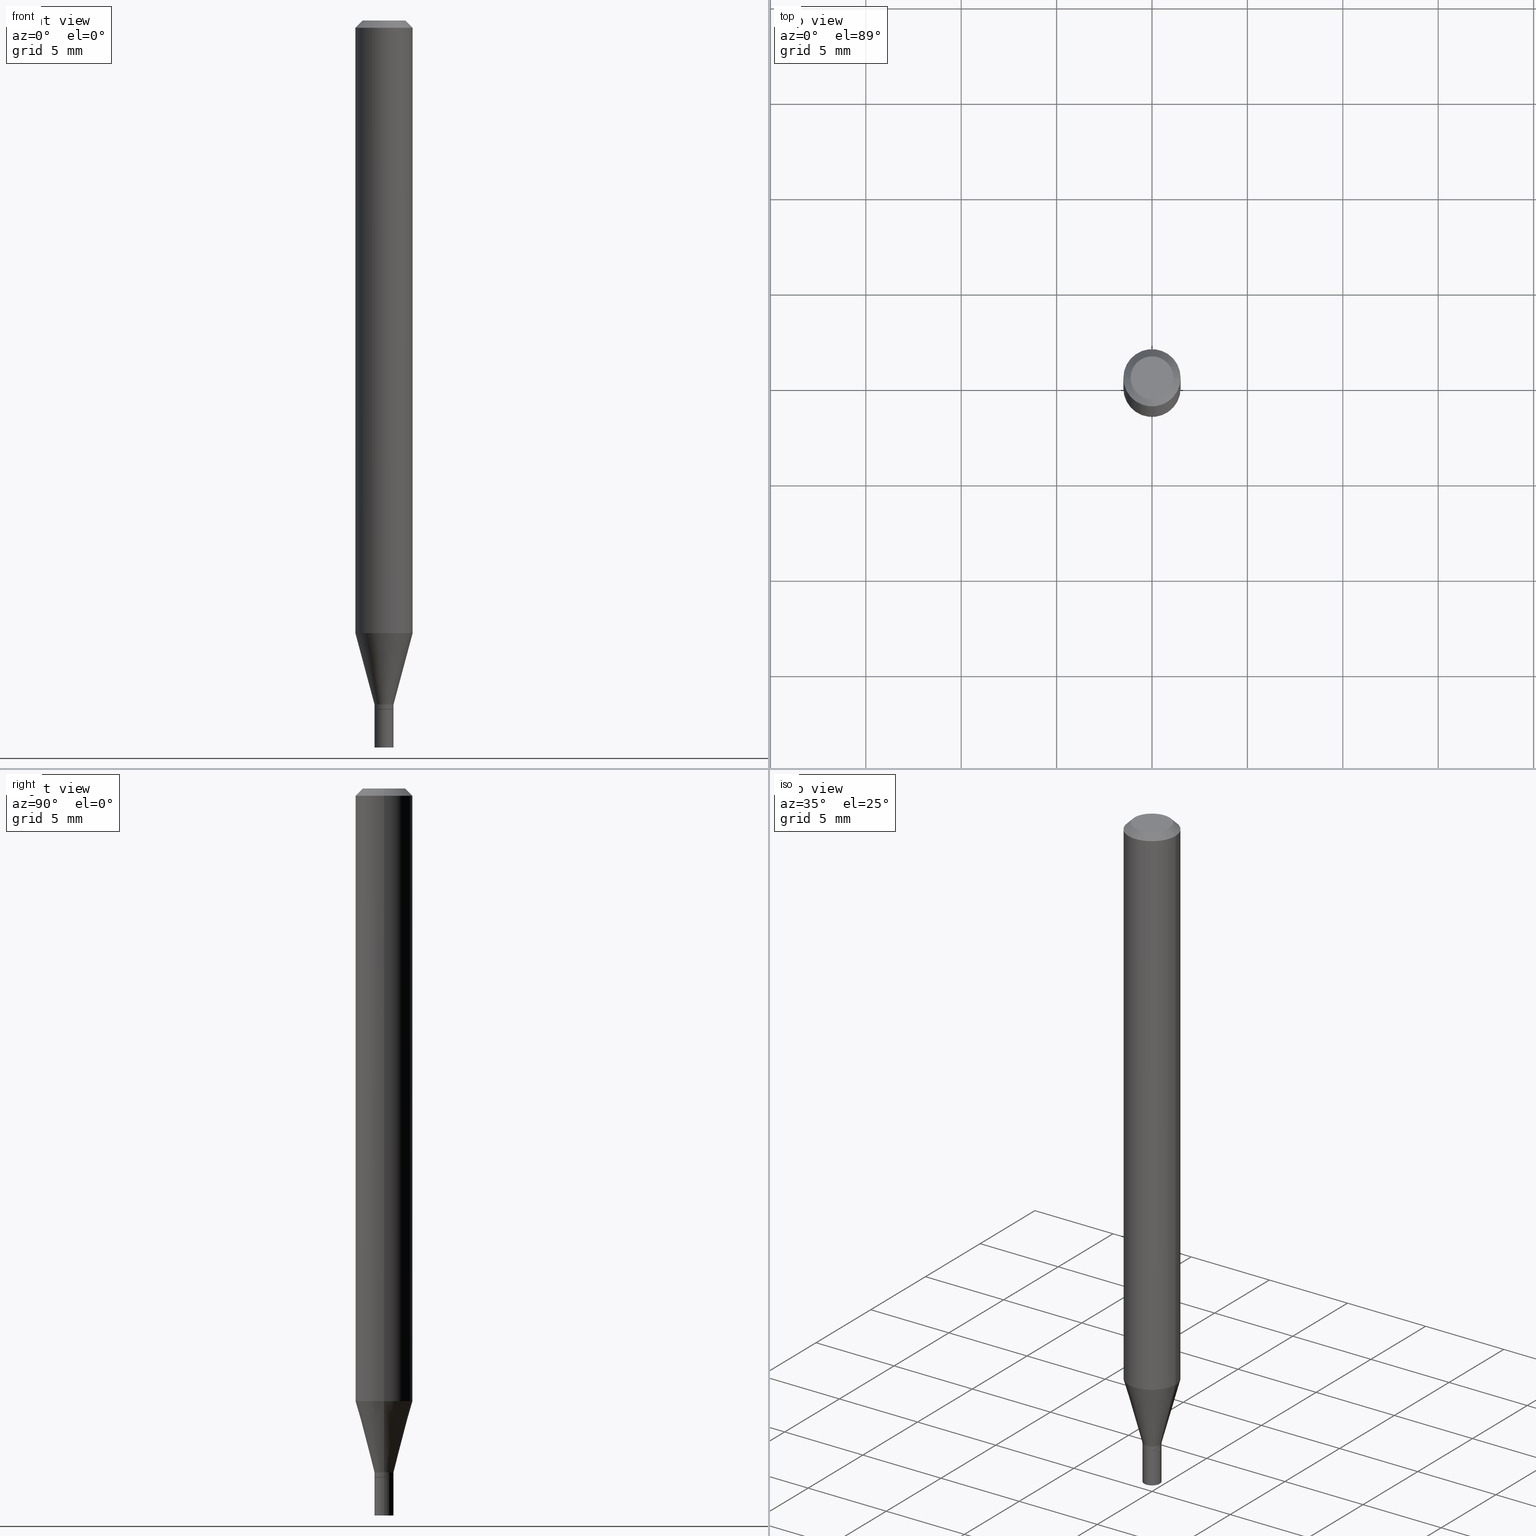
[diagram: canonical four-view strip — front | top / right | iso, engineering-drawing reading convention]
A machine part, canonical four-view strip (front | top / right | iso — engineering-drawing reading convention). The complete STEP part file that produces these views, byte-faithful:
ISO-10303-21;
HEADER;
FILE_DESCRIPTION (( 'STEP AP203' ),
    '1' );
FILE_NAME ('41605.STEP',
    '2024-03-12T19:14:59',
    ( '' ),
    ( '' ),
    'SwSTEP 2.0',
    'SolidWorks 2023',
    '' );
FILE_SCHEMA (( 'CONFIG_CONTROL_DESIGN' ));
ENDSEC;

DATA;
#1 = LOCAL_TIME ( 15, 14, 59.00000000000000000, #165 ) ;
#2 = DIRECTION ( 'NONE',  ( 1.000000000000000000, -6.982962677686265922E-15, 4.819687581474398999E-29 ) ) ;
#3 = CIRCLE ( 'NONE', #91, 0.01969999999999999876 ) ;
#4 = DIRECTION ( 'NONE',  ( 1.000000000000000000, -6.982962677686266711E-15, 4.876176775795935793E-29 ) ) ;
#5 = DIRECTION ( 'NONE',  ( 1.000000000000000000, -6.982962677686278543E-15, 0.000000000000000000 ) ) ;
#6 = CYLINDRICAL_SURFACE ( 'NONE', #210, 0.01969999999999990856 ) ;
#7 =( CONVERSION_BASED_UNIT ( 'INCH', #335 ) LENGTH_UNIT ( ) NAMED_UNIT ( #416 ) );
#8 = ORIENTED_EDGE ( 'NONE', *, *, #56, .F. ) ;
#9 = DIRECTION ( 'NONE',  ( -2.445468806185136877E-29, 3.491481338843145188E-15, 1.000000000000000000 ) ) ;
#10 = DIRECTION ( 'NONE',  ( -2.445468806185136597E-29, 3.491481338843145583E-15, 1.000000000000000000 ) ) ;
#11 = DATE_AND_TIME ( #27, #411 ) ;
#12 = EDGE_CURVE ( 'NONE', #26, #277, #35, .T. ) ;
#13 = ORIENTED_EDGE ( 'NONE', *, *, #101, .T. ) ;
#14 = DIRECTION ( 'NONE',  ( -2.445468806185136877E-29, 3.491481338843145188E-15, 1.000000000000000000 ) ) ;
#15 = CARTESIAN_POINT ( 'NONE',  ( 0.000000000000000000, 0.000000000000000000, 0.000000000000000000 ) ) ;
#16 = ADVANCED_FACE ( 'NONE', ( #285 ), #425, .F. ) ;
#17 = DATE_TIME_ROLE ( 'creation_date' ) ;
#18 = ORIENTED_EDGE ( 'NONE', *, *, #408, .F. ) ;
#19 = DIRECTION ( 'NONE',  ( 0.2588190451025211836, 1.565188264969622559E-15, 0.9659258262890679791 ) ) ;
#20 = EDGE_LOOP ( 'NONE', ( #52, #329 ) ) ;
#21 = EDGE_CURVE ( 'NONE', #215, #443, #141, .T. ) ;
#22 = AXIS2_PLACEMENT_3D ( 'NONE', #54, #354, #95 ) ;
#23 = CC_DESIGN_APPROVAL ( #290, ( #103 ) ) ;
#24 = PLANE ( 'NONE',  #364 ) ;
#25 = PERSON_AND_ORGANIZATION ( #250, #269 ) ;
#26 = VERTEX_POINT ( 'NONE', #252 ) ;
#27 = CALENDAR_DATE ( 2024, 12, 3 ) ;
#28 = AXIS2_PLACEMENT_3D ( 'NONE', #395, #428, #70 ) ;
#29 = DATE_AND_TIME ( #318, #1 ) ;
#30 = FACE_OUTER_BOUND ( 'NONE', #119, .T. ) ;
#31 = CC_DESIGN_PERSON_AND_ORGANIZATION_ASSIGNMENT ( #278, #434, ( #259 ) ) ;
#32 = LOCAL_TIME ( 15, 14, 59.00000000000000000, #275 ) ;
#33 = MANIFOLD_SOLID_BREP ( 'Body-Move/Copy2[1]', #170 ) ;
#34 = ORIENTED_EDGE ( 'NONE', *, *, #267, .T. ) ;
#35 = LINE ( 'NONE', #84, #282 ) ;
#36 = VERTEX_POINT ( 'NONE', #184 ) ;
#37 = CARTESIAN_POINT ( 'NONE',  ( 0.01969999999999999876, -1.375643647504194363E-16, 9.606068248317991466E-31 ) ) ;
#38 = AXIS2_PLACEMENT_3D ( 'NONE', #353, #310, #92 ) ;
#39 = CC_DESIGN_APPROVAL ( #130, ( #230 ) ) ;
#40 = CARTESIAN_POINT ( 'NONE',  ( -0.01969999999999990856, 1.399769189447390869E-16, -9.690302127802118711E-31 ) ) ;
#41 = CLOSED_SHELL ( 'NONE', ( #405, #420, #331, #137, #46, #315, #265, #157, #180, #16, #422, #304 ) ) ;
#42 = ORIENTED_EDGE ( 'NONE', *, *, #213, .T. ) ;
#43 = DIRECTION ( 'NONE',  ( 1.000000000000000000, -6.982962677686266711E-15, 0.000000000000000000 ) ) ;
#44 = CARTESIAN_POINT ( 'NONE',  ( -0.05905000000000001914, -3.994159004369345529E-15, -1.264143800722164368 ) ) ;
#45 = DIRECTION ( 'NONE',  ( -2.445468806185136877E-29, 3.491481338843145188E-15, 1.000000000000000000 ) ) ;
#46 = ADVANCED_FACE ( 'NONE', ( #214 ), #199, .T. ) ;
#47 = DIRECTION ( 'NONE',  ( -2.445468806185136597E-29, 3.491481338843145583E-15, 1.000000000000000000 ) ) ;
#48 = CC_DESIGN_PERSON_AND_ORGANIZATION_ASSIGNMENT ( #66, #366, ( #230 ) ) ;
#49 = ORIENTED_EDGE ( 'NONE', *, *, #338, .T. ) ;
#50 = CARTESIAN_POINT ( 'NONE',  ( 3.091424231198372341E-29, -4.413734489835684233E-15, -1.264143800722164368 ) ) ;
#51 = AXIS2_PLACEMENT_3D ( 'NONE', #446, #113, #326 ) ;
#52 = ORIENTED_EDGE ( 'NONE', *, *, #21, .T. ) ;
#53 = EDGE_CURVE ( 'NONE', #346, #215, #370, .T. ) ;
#54 = CARTESIAN_POINT ( 'NONE',  ( 3.075995059520799729E-16, 0.04404999999999999888, 2.287766971589501637E-17 ) ) ;
#55 = CYLINDRICAL_SURFACE ( 'NONE', #319, 0.05905000000000001914 ) ;
#56 = EDGE_CURVE ( 'NONE', #337, #211, #409, .T. ) ;
#57 = VERTEX_POINT ( 'NONE', #115 ) ;
#58 = LINE ( 'NONE', #198, #325 ) ;
#59 = AXIS2_PLACEMENT_3D ( 'NONE', #271, #200, #61 ) ;
#60 = APPROVAL_PERSON_ORGANIZATION ( #131, #367, #201 ) ;
#61 = DIRECTION ( 'NONE',  ( 1.000000000000000000, -6.982962677686265922E-15, 4.876176775795935232E-29 ) ) ;
#62 = CONICAL_SURFACE ( 'NONE', #38, 0.05905000000000001914, 0.7853981633974372878 ) ;
#63 = CARTESIAN_POINT ( 'NONE',  ( -0.01969999999999999876, 1.399769189447397278E-16, -9.690302127802162501E-31 ) ) ;
#64 = SECURITY_CLASSIFICATION_LEVEL ( 'unclassified' ) ;
#65 = EDGE_LOOP ( 'NONE', ( #34, #266 ) ) ;
#66 = PERSON_AND_ORGANIZATION ( #250, #269 ) ;
#67 = ORIENTED_EDGE ( 'NONE', *, *, #267, .F. ) ;
#68 = MECHANICAL_CONTEXT ( 'NONE', #386, 'mechanical' ) ;
#69 = PERSON_AND_ORGANIZATION ( #250, #269 ) ;
#70 = DIRECTION ( 'NONE',  ( 1.000000000000000000, -6.982962677686266711E-15, 0.000000000000000000 ) ) ;
#71 = ORIENTED_EDGE ( 'NONE', *, *, #340, .T. ) ;
#72 = VERTEX_POINT ( 'NONE', #85 ) ;
#73 = ADVANCED_BREP_SHAPE_REPRESENTATION ( '41605', ( #33, #189, #246 ), #160 ) ;
#74 = APPROVAL_PERSON_ORGANIZATION ( #134, #130, #320 ) ;
#75 = CARTESIAN_POINT ( 'NONE',  ( 3.450556485527227151E-29, -4.926480169107677131E-15, -1.410999999999999810 ) ) ;
#76 = CARTESIAN_POINT ( 'NONE',  ( -0.01969999999999999876, -4.959855298636500621E-15, -1.421300000000000008 ) ) ;
#77 = CARTESIAN_POINT ( 'NONE',  ( -0.01969999999999989468, -4.390331127266142070E-15, -1.410999999999999810 ) ) ;
#78 = ORIENTED_EDGE ( 'NONE', *, *, #453, .F. ) ;
#79 = DIRECTION ( 'NONE',  ( 1.000000000000000000, -6.982962677686266711E-15, 4.876176775795935793E-29 ) ) ;
#80 = VECTOR ( 'NONE', #45, 39.37007874015748143 ) ;
#81 = ORIENTED_EDGE ( 'NONE', *, *, #281, .F. ) ;
#82 = ORIENTED_EDGE ( 'NONE', *, *, #56, .T. ) ;
#83 = EDGE_CURVE ( 'NONE', #211, #36, #221, .T. ) ;
#84 = CARTESIAN_POINT ( 'NONE',  ( -0.05905000000000001914, 3.599717260347269535E-16, -0.01499999999999999944 ) ) ;
#85 = CARTESIAN_POINT ( 'NONE',  ( -0.01969999999999991896, -4.820719767283602447E-15, -1.420800000000000063 ) ) ;
#86 = DIRECTION ( 'NONE',  ( 1.000000000000000000, -6.982962677686265922E-15, 4.876176775795935793E-29 ) ) ;
#87 = DIRECTION ( 'NONE',  ( -2.445468806185136597E-29, 3.491481338843145583E-15, 1.000000000000000000 ) ) ;
#88 = VERTEX_POINT ( 'NONE', #44 ) ;
#89 = DIRECTION ( 'NONE',  ( 1.000000000000000000, -6.982962677686278543E-15, 0.000000000000000000 ) ) ;
#90 = AXIS2_PLACEMENT_3D ( 'NONE', #391, #133, #439 ) ;
#91 = AXIS2_PLACEMENT_3D ( 'NONE', #300, #451, #89 ) ;
#92 = DIRECTION ( 'NONE',  ( -1.000000000000000000, 6.982962677686266711E-15, 0.000000000000000000 ) ) ;
#93 = LINE ( 'NONE', #381, #219 ) ;
#94 = ADVANCED_FACE ( 'NONE', ( #187 ), #344, .T. ) ;
#95 = DIRECTION ( 'NONE',  ( -1.000000000000000000, 6.982962677686265922E-15, -4.876176775795935793E-29 ) ) ;
#96 = EDGE_CURVE ( 'NONE', #346, #297, #222, .T. ) ;
#97 = APPLICATION_PROTOCOL_DEFINITION ( 'international standard', 'config_control_design', 1994, #120 ) ;
#98 = EDGE_CURVE ( 'NONE', #443, #215, #3, .T. ) ;
#99 = ORIENTED_EDGE ( 'NONE', *, *, #338, .F. ) ;
#100 = DATE_AND_TIME ( #166, #32 ) ;
#101 = EDGE_CURVE ( 'NONE', #242, #72, #171, .T. ) ;
#102 = CIRCLE ( 'NONE', #372, 0.05905000000000001914 ) ;
#103 = PRODUCT_DEFINITION_FORMATION_WITH_SPECIFIED_SOURCE ( 'ANY', '', #296, .NOT_KNOWN. ) ;
#104 = CARTESIAN_POINT ( 'NONE',  ( 3.475744814230934489E-29, -4.962442426897762471E-15, -1.421300000000000008 ) ) ;
#105 = APPROVAL_STATUS ( 'not_yet_approved' ) ;
#106 = DIRECTION ( 'NONE',  ( -2.445468806185136877E-29, 3.491481338843145188E-15, 1.000000000000000000 ) ) ;
#107 = DIRECTION ( 'NONE',  ( 1.000000000000000000, -6.982962677686266711E-15, 0.000000000000000000 ) ) ;
#108 = CARTESIAN_POINT ( 'NONE',  ( 0.05905000000000001914, -4.574846268510562433E-16, -0.01499999999999999944 ) ) ;
#109 = CYLINDRICAL_SURFACE ( 'NONE', #307, 0.01969999999999990856 ) ;
#110 = DIRECTION ( 'NONE',  ( -2.445468806185136597E-29, 3.491481338843145583E-15, 1.000000000000000000 ) ) ;
#111 = VECTOR ( 'NONE', #459, 39.37007874015748143 ) ;
#112 = DIRECTION ( 'NONE',  ( -2.445468806185136597E-29, 3.491481338843145583E-15, 1.000000000000000000 ) ) ;
#113 = DIRECTION ( 'NONE',  ( -2.445468806185136597E-29, 3.491481338843145583E-15, 1.000000000000000000 ) ) ;
#114 = FACE_OUTER_BOUND ( 'NONE', #447, .T. ) ;
#115 = CARTESIAN_POINT ( 'NONE',  ( 0.04404999999999999888, -3.798447818264455642E-16, 3.533548453838735986E-16 ) ) ;
#116 = DIRECTION ( 'NONE',  ( -2.445468806185136597E-29, 3.491481338843145583E-15, 1.000000000000000000 ) ) ;
#117 = CIRCLE ( 'NONE', #388, 0.05905000000000001914 ) ;
#118 = AXIS2_PLACEMENT_3D ( 'NONE', #75, #345, #43 ) ;
#119 = EDGE_LOOP ( 'NONE', ( #168, #262, #82, #270 ) ) ;
#120 = APPLICATION_CONTEXT ( 'configuration controlled 3d designs of mechanical parts and assemblies' ) ;
#121 = DIRECTION ( 'NONE',  ( -0.2588190451025211836, 5.211531920934547886E-15, 0.9659258262890679791 ) ) ;
#122 = DIRECTION ( 'NONE',  ( 1.000000000000000000, -6.982962677686258033E-15, 0.000000000000000000 ) ) ;
#123 = ORIENTED_EDGE ( 'NONE', *, *, #176, .F. ) ;
#124 = LOCAL_TIME ( 15, 14, 59.00000000000000000, #312 ) ;
#125 = ORIENTED_EDGE ( 'NONE', *, *, #430, .F. ) ;
#126 = EDGE_CURVE ( 'NONE', #242, #337, #413, .T. ) ;
#127 = DATE_TIME_ROLE ( 'classification_date' ) ;
#128 = CALENDAR_DATE ( 2024, 12, 3 ) ;
#129 = DIRECTION ( 'NONE',  ( -2.445468806185136597E-29, 3.491481338843145583E-15, 1.000000000000000000 ) ) ;
#130 = APPROVAL ( #204, 'UNSPECIFIED' ) ;
#131 = PERSON_AND_ORGANIZATION ( #250, #269 ) ;
#132 = ORIENTED_EDGE ( 'NONE', *, *, #197, .T. ) ;
#133 = DIRECTION ( 'NONE',  ( -2.445468806185136597E-29, 3.491481338843145583E-15, 1.000000000000000000 ) ) ;
#134 = PERSON_AND_ORGANIZATION ( #250, #269 ) ;
#135 = AXIS2_PLACEMENT_3D ( 'NONE', #305, #47, #385 ) ;
#136 = CARTESIAN_POINT ( 'NONE',  ( 3.475744814230934489E-29, -4.962442426897762471E-15, -1.421300000000000008 ) ) ;
#137 = ADVANCED_FACE ( 'NONE', ( #287 ), #440, .T. ) ;
#138 = LINE ( 'NONE', #172, #356 ) ;
#139 = PERSON_AND_ORGANIZATION_ROLE ( 'design_supplier' ) ;
#140 = EDGE_LOOP ( 'NONE', ( #462, #272, #393, #254 ) ) ;
#141 = CIRCLE ( 'NONE', #435, 0.01969999999999999876 ) ;
#142 = CARTESIAN_POINT ( 'NONE',  ( 3.450556485527227151E-29, -4.926480169107677131E-15, -1.410999999999999810 ) ) ;
#143 = AXIS2_PLACEMENT_3D ( 'NONE', #292, #258, #86 ) ;
#144 = DIRECTION ( 'NONE',  ( -2.445468806185136597E-29, 3.491481338843145583E-15, 1.000000000000000000 ) ) ;
#145 = DIRECTION ( 'NONE',  ( -2.445468806185136597E-29, 3.491481338843145583E-15, 1.000000000000000000 ) ) ;
#146 = DIRECTION ( 'NONE',  ( 1.000000000000000000, -6.982962677686278543E-15, 0.000000000000000000 ) ) ;
#147 = CARTESIAN_POINT ( 'NONE',  ( 3.668203209277705088E-31, -5.237222008264718399E-17, -0.01499999999999999944 ) ) ;
#148 = ORIENTED_EDGE ( 'NONE', *, *, #21, .F. ) ;
#149 = CARTESIAN_POINT ( 'NONE',  ( -0.05905000000000001914, 4.195754854663392958E-16, -2.904631170795522943E-30 ) ) ;
#150 = ORIENTED_EDGE ( 'NONE', *, *, #334, .F. ) ;
#151 = PLANE ( 'NONE',  #143 ) ;
#152 = DIRECTION ( 'NONE',  ( -2.445468806185136597E-29, 3.491481338843145583E-15, 1.000000000000000000 ) ) ;
#153 = AXIS2_PLACEMENT_3D ( 'NONE', #147, #145, #291 ) ;
#154 = ADVANCED_FACE ( 'NONE', ( #445 ), #404, .T. ) ;
#155 = DIRECTION ( 'NONE',  ( 1.000000000000000000, -6.982962677686278543E-15, 0.000000000000000000 ) ) ;
#156 = DIRECTION ( 'NONE',  ( -2.445468806185136877E-29, 3.491481338843145188E-15, 1.000000000000000000 ) ) ;
#157 = ADVANCED_FACE ( 'NONE', ( #456 ), #62, .T. ) ;
#158 = CARTESIAN_POINT ( 'NONE',  ( 3.474522079827842248E-29, -4.960696686228341756E-15, -1.420800000000000063 ) ) ;
#159 = AXIS2_PLACEMENT_3D ( 'NONE', #225, #341, #190 ) ;
#160 =( GEOMETRIC_REPRESENTATION_CONTEXT ( 3 ) GLOBAL_UNCERTAINTY_ASSIGNED_CONTEXT ( ( #417 ) ) GLOBAL_UNIT_ASSIGNED_CONTEXT ( ( #7, #174, #460 ) ) REPRESENTATION_CONTEXT ( 'NONE', 'WORKASPACE' ) );
#161 = EDGE_CURVE ( 'NONE', #72, #211, #442, .T. ) ;
#162 = CARTESIAN_POINT ( 'NONE',  ( 3.668203209277704895E-29, -5.237222008264718177E-15, -1.500000000000000222 ) ) ;
#163 = APPROVAL_STATUS ( 'not_yet_approved' ) ;
#164 = CARTESIAN_POINT ( 'NONE',  ( -0.01969999999999999876, -4.959855298636500621E-15, -1.500000000000000222 ) ) ;
#165 = COORDINATED_UNIVERSAL_TIME_OFFSET ( 5, 0, .BEHIND. ) ;
#166 = CALENDAR_DATE ( 2024, 12, 3 ) ;
#167 = EDGE_CURVE ( 'NONE', #382, #88, #102, .T. ) ;
#168 = ORIENTED_EDGE ( 'NONE', *, *, #101, .F. ) ;
#169 = AXIS2_PLACEMENT_3D ( 'NONE', #162, #455, #155 ) ;
#170 = CLOSED_SHELL ( 'NONE', ( #154, #327, #94, #212 ) ) ;
#171 = LINE ( 'NONE', #433, #355 ) ;
#172 = CARTESIAN_POINT ( 'NONE',  ( 0.05905000000000001914, -4.123439461173741806E-16, 2.879382386107500921E-30 ) ) ;
#173 = CARTESIAN_POINT ( 'NONE',  ( 3.475744814230934489E-29, -4.962442426897762471E-15, -1.421300000000000008 ) ) ;
#174 =( NAMED_UNIT ( * ) PLANE_ANGLE_UNIT ( ) SI_UNIT ( $, .RADIAN. ) );
#175 = CC_DESIGN_APPROVAL ( #367, ( #259 ) ) ;
#176 = EDGE_CURVE ( 'NONE', #397, #88, #93, .T. ) ;
#177 = CARTESIAN_POINT ( 'NONE',  ( 0.000000000000000000, 0.000000000000000000, 0.000000000000000000 ) ) ;
#178 = EDGE_LOOP ( 'NONE', ( #279, #217, #223, #18 ) ) ;
#179 = ORIENTED_EDGE ( 'NONE', *, *, #12, .F. ) ;
#180 = ADVANCED_FACE ( 'NONE', ( #424 ), #268, .F. ) ;
#181 = ORIENTED_EDGE ( 'NONE', *, *, #314, .F. ) ;
#182 = VECTOR ( 'NONE', #9, 39.37007874015748143 ) ;
#183 = AXIS2_PLACEMENT_3D ( 'NONE', #136, #247, #280 ) ;
#184 = CARTESIAN_POINT ( 'NONE',  ( 0.01969999999999989468, -5.064044533858095556E-15, -1.410999999999999810 ) ) ;
#185 = ORIENTED_EDGE ( 'NONE', *, *, #12, .T. ) ;
#186 = DIRECTION ( 'NONE',  ( -1.000000000000000000, 6.982962677686266711E-15, 0.000000000000000000 ) ) ;
#187 = FACE_OUTER_BOUND ( 'NONE', #140, .T. ) ;
#188 = ORIENTED_EDGE ( 'NONE', *, *, #237, .F. ) ;
#189 = MANIFOLD_SOLID_BREP ( 'Body-Move/Copy2[2]', #41 ) ;
#190 = DIRECTION ( 'NONE',  ( 1.000000000000000000, -6.982962677686266711E-15, 0.000000000000000000 ) ) ;
#191 = DIRECTION ( 'NONE',  ( 1.000000000000000000, -6.982962677686266711E-15, 4.876176775795935793E-29 ) ) ;
#192 = VERTEX_POINT ( 'NONE', #234 ) ;
#193 = DIRECTION ( 'NONE',  ( -2.445468806185136597E-29, 3.491481338843145583E-15, 1.000000000000000000 ) ) ;
#194 = CONICAL_SURFACE ( 'NONE', #118, 0.01969999999999989468, 0.2617993877991499074 ) ;
#195 = DIRECTION ( 'NONE',  ( 1.000000000000000000, -6.982962677686270655E-15, 0.000000000000000000 ) ) ;
#196 = CARTESIAN_POINT ( 'NONE',  ( -8.641182519006289553E-45, 1.233731848647591164E-30, 3.533548453838711334E-16 ) ) ;
#197 = EDGE_CURVE ( 'NONE', #36, #382, #58, .T. ) ;
#198 = CARTESIAN_POINT ( 'NONE',  ( 0.01969999999999989468, -5.064044533858095556E-15, -1.410999999999999810 ) ) ;
#199 = CONICAL_SURFACE ( 'NONE', #159, 0.01969999999999989468, 0.2617993877991499074 ) ;
#200 = DIRECTION ( 'NONE',  ( -2.445468806185136597E-29, 3.491481338843145583E-15, 1.000000000000000000 ) ) ;
#201 = APPROVAL_ROLE ( '' ) ;
#202 = COORDINATED_UNIVERSAL_TIME_OFFSET ( 5, 0, .BEHIND. ) ;
#203 = ORIENTED_EDGE ( 'NONE', *, *, #213, .F. ) ;
#204 = APPROVAL_STATUS ( 'not_yet_approved' ) ;
#205 = ORIENTED_EDGE ( 'NONE', *, *, #96, .F. ) ;
#206 = ORIENTED_EDGE ( 'NONE', *, *, #126, .F. ) ;
#207 = CARTESIAN_POINT ( 'NONE',  ( -0.05905000000000001914, -1.813477869492826360E-15, -0.01499999999999999944 ) ) ;
#208 = DIRECTION ( 'NONE',  ( 1.000000000000000000, -6.982962677686253300E-15, 0.000000000000000000 ) ) ;
#209 = CARTESIAN_POINT ( 'NONE',  ( 0.000000000000000000, 0.000000000000000000, 0.000000000000000000 ) ) ;
#210 = AXIS2_PLACEMENT_3D ( 'NONE', #177, #332, #4 ) ;
#211 = VERTEX_POINT ( 'NONE', #227 ) ;
#212 = ADVANCED_FACE ( 'NONE', ( #378 ), #24, .F. ) ;
#213 = EDGE_CURVE ( 'NONE', #88, #382, #117, .T. ) ;
#214 = FACE_OUTER_BOUND ( 'NONE', #457, .T. ) ;
#215 = VERTEX_POINT ( 'NONE', #352 ) ;
#216 = ORIENTED_EDGE ( 'NONE', *, *, #349, .T. ) ;
#217 = ORIENTED_EDGE ( 'NONE', *, *, #334, .T. ) ;
#218 = DIRECTION ( 'NONE',  ( 2.445468806185136597E-29, -3.491481338843145583E-15, -1.000000000000000000 ) ) ;
#219 = VECTOR ( 'NONE', #121, 39.37007874015748854 ) ;
#220 = APPROVAL_PERSON_ORGANIZATION ( #69, #290, #461 ) ;
#221 = LINE ( 'NONE', #375, #410 ) ;
#222 = CIRCLE ( 'NONE', #358, 0.01969999999999999876 ) ;
#223 = ORIENTED_EDGE ( 'NONE', *, *, #340, .F. ) ;
#224 = CARTESIAN_POINT ( 'NONE',  ( 3.668203209277705088E-31, -5.237222008264718399E-17, -0.01499999999999999944 ) ) ;
#225 = CARTESIAN_POINT ( 'NONE',  ( 3.450556485527227151E-29, -4.926480169107677131E-15, -1.410999999999999810 ) ) ;
#226 = PRODUCT_DEFINITION_SHAPE ( 'NONE', 'NONE',  #230 ) ;
#227 = CARTESIAN_POINT ( 'NONE',  ( 0.01969999999999991896, -5.098261050978760182E-15, -1.420800000000000063 ) ) ;
#228 = CARTESIAN_POINT ( 'NONE',  ( 0.01919999999999999485, -5.096515310309338678E-15, -1.421300000000000008 ) ) ;
#229 = EDGE_LOOP ( 'NONE', ( #99, #376, #401, #78 ) ) ;
#230 = PRODUCT_DEFINITION ( 'UNKNOWN', '', #103, #288 ) ;
#231 = CARTESIAN_POINT ( 'NONE',  ( 3.091424231198372341E-29, -4.413734489835684233E-15, -1.264143800722164368 ) ) ;
#232 = AXIS2_PLACEMENT_3D ( 'NONE', #224, #218, #186 ) ;
#233 = CIRCLE ( 'NONE', #169, 0.01969999999999999876 ) ;
#234 = CARTESIAN_POINT ( 'NONE',  ( 0.05905000000000001914, -4.647161662000214077E-16, -0.01499999999999999944 ) ) ;
#235 = ORIENTED_EDGE ( 'NONE', *, *, #408, .T. ) ;
#236 = CARTESIAN_POINT ( 'NONE',  ( 1.375643647504541708E-16, 0.01969999999999503398, -1.421300000000000008 ) ) ;
#237 = EDGE_CURVE ( 'NONE', #297, #346, #233, .T. ) ;
#238 = LINE ( 'NONE', #63, #328 ) ;
#239 = CIRCLE ( 'NONE', #51, 0.01969999999999989468 ) ;
#240 = VECTOR ( 'NONE', #343, 39.37007874015748143 ) ;
#241 = EDGE_CURVE ( 'NONE', #211, #72, #396, .T. ) ;
#242 = VERTEX_POINT ( 'NONE', #336 ) ;
#243 = CALENDAR_DATE ( 2024, 12, 3 ) ;
#244 = ORIENTED_EDGE ( 'NONE', *, *, #241, .F. ) ;
#245 = FACE_OUTER_BOUND ( 'NONE', #432, .T. ) ;
#246 = AXIS2_PLACEMENT_3D ( 'NONE', #464, #463, #286 ) ;
#247 = DIRECTION ( 'NONE',  ( -2.445468806185136597E-29, 3.491481338843145583E-15, 1.000000000000000000 ) ) ;
#248 = FACE_OUTER_BOUND ( 'NONE', #249, .T. ) ;
#249 = EDGE_LOOP ( 'NONE', ( #444, #49, #81, #429 ) ) ;
#250 = PERSON ( 'UNSPECIFIED', 'UNSPECIFIED', 'UNSPECIFIED', ('UNSPECIFIED'), ('UNSPECIFIED'), ('UNSPECIFIED') ) ;
#251 = EDGE_LOOP ( 'NONE', ( #350, #206 ) ) ;
#252 = CARTESIAN_POINT ( 'NONE',  ( -0.04404999999999999888, 3.337856159934041534E-16, 3.533548453838689148E-16 ) ) ;
#253 = ORIENTED_EDGE ( 'NONE', *, *, #167, .F. ) ;
#254 = ORIENTED_EDGE ( 'NONE', *, *, #98, .F. ) ;
#255 = FACE_OUTER_BOUND ( 'NONE', #412, .T. ) ;
#256 = DIRECTION ( 'NONE',  ( 1.000000000000000000, -6.982962677686265922E-15, 4.876176775795935793E-29 ) ) ;
#257 = ORIENTED_EDGE ( 'NONE', *, *, #96, .T. ) ;
#258 = DIRECTION ( 'NONE',  ( -2.438088387897960049E-29, 3.491481338843145188E-15, 1.000000000000000000 ) ) ;
#259 = SECURITY_CLASSIFICATION ( '', '', #64 ) ;
#260 = AXIS2_PLACEMENT_3D ( 'NONE', #317, #293, #79 ) ;
#261 = CARTESIAN_POINT ( 'NONE',  ( 0.01969999999999999876, -5.374786373015138180E-15, -1.500000000000000222 ) ) ;
#262 = ORIENTED_EDGE ( 'NONE', *, *, #126, .T. ) ;
#263 = PERSON_AND_ORGANIZATION ( #250, #269 ) ;
#264 = EDGE_LOOP ( 'NONE', ( #351, #13, #244, #8 ) ) ;
#265 = ADVANCED_FACE ( 'NONE', ( #302 ), #55, .T. ) ;
#266 = ORIENTED_EDGE ( 'NONE', *, *, #374, .T. ) ;
#267 = EDGE_CURVE ( 'NONE', #26, #57, #348, .T. ) ;
#268 = PLANE ( 'NONE',  #22 ) ;
#269 = ORGANIZATION ( 'UNSPECIFIED', 'UNSPECIFIED', '' ) ;
#270 = ORIENTED_EDGE ( 'NONE', *, *, #161, .F. ) ;
#271 = CARTESIAN_POINT ( 'NONE',  ( 0.000000000000000000, 0.000000000000000000, 0.000000000000000000 ) ) ;
#272 = ORIENTED_EDGE ( 'NONE', *, *, #237, .T. ) ;
#273 = PRODUCT_RELATED_PRODUCT_CATEGORY ( 'detail', '', ( #296 ) ) ;
#274 = DIRECTION ( 'NONE',  ( -2.445468806185136597E-29, 3.491481338843145583E-15, 1.000000000000000000 ) ) ;
#275 = COORDINATED_UNIVERSAL_TIME_OFFSET ( 5, 0, .BEHIND. ) ;
#276 = DATE_AND_TIME ( #128, #124 ) ;
#277 = VERTEX_POINT ( 'NONE', #207 ) ;
#278 = PERSON_AND_ORGANIZATION ( #250, #269 ) ;
#279 = ORIENTED_EDGE ( 'NONE', *, *, #167, .T. ) ;
#280 = DIRECTION ( 'NONE',  ( 1.000000000000000000, -6.982962677686253300E-15, 0.000000000000000000 ) ) ;
#281 = EDGE_CURVE ( 'NONE', #36, #397, #283, .T. ) ;
#282 = VECTOR ( 'NONE', #421, 39.37007874015748143 ) ;
#283 = CIRCLE ( 'NONE', #441, 0.01969999999999989468 ) ;
#284 = AXIS2_PLACEMENT_3D ( 'NONE', #448, #10, #379 ) ;
#285 = FACE_OUTER_BOUND ( 'NONE', #251, .T. ) ;
#286 = DIRECTION ( 'NONE',  ( 1.000000000000000000, 0.000000000000000000, 0.000000000000000000 ) ) ;
#287 = FACE_OUTER_BOUND ( 'NONE', #178, .T. ) ;
#288 = DESIGN_CONTEXT ( 'detailed design', #120, 'design' ) ;
#289 = CIRCLE ( 'NONE', #28, 0.05905000000000001914 ) ;
#290 = APPROVAL ( #163, 'UNSPECIFIED' ) ;
#291 = DIRECTION ( 'NONE',  ( 1.000000000000000000, -6.982962677686266711E-15, 0.000000000000000000 ) ) ;
#292 = CARTESIAN_POINT ( 'NONE',  ( 3.576687321579069994E-29, -5.368277968210015545E-15, -1.500000000000000222 ) ) ;
#293 = DIRECTION ( 'NONE',  ( -2.445468806185136597E-29, 3.491481338843145583E-15, 1.000000000000000000 ) ) ;
#294 = DIRECTION ( 'NONE',  ( 0.7071067811865656694, -2.468850131082446387E-15, 0.7071067811865294761 ) ) ;
#295 = CARTESIAN_POINT ( 'NONE',  ( 0.01919999999999999485, -5.096515310309338678E-15, -1.421300000000000008 ) ) ;
#296 = PRODUCT ( '41605', '41605', '', ( #68 ) ) ;
#297 = VERTEX_POINT ( 'NONE', #164 ) ;
#298 = CC_DESIGN_SECURITY_CLASSIFICATION ( #259, ( #103 ) ) ;
#299 = CC_DESIGN_PERSON_AND_ORGANIZATION_ASSIGNMENT ( #263, #371, ( #296 ) ) ;
#300 = CARTESIAN_POINT ( 'NONE',  ( 3.475744814230934489E-29, -4.962442426897762471E-15, -1.421300000000000008 ) ) ;
#301 = CARTESIAN_POINT ( 'NONE',  ( 3.474522079827842248E-29, -4.960696686228341756E-15, -1.420800000000000063 ) ) ;
#302 = FACE_OUTER_BOUND ( 'NONE', #361, .T. ) ;
#303 = ORIENTED_EDGE ( 'NONE', *, *, #453, .T. ) ;
#304 = ADVANCED_FACE ( 'NONE', ( #313 ), #6, .T. ) ;
#305 = CARTESIAN_POINT ( 'NONE',  ( 3.475744814230934489E-29, -4.962442426897762471E-15, -1.421300000000000008 ) ) ;
#306 = AXIS2_PLACEMENT_3D ( 'NONE', #158, #129, #122 ) ;
#307 = AXIS2_PLACEMENT_3D ( 'NONE', #209, #144, #191 ) ;
#308 = CC_DESIGN_PERSON_AND_ORGANIZATION_ASSIGNMENT ( #25, #139, ( #103 ) ) ;
#309 = AXIS2_PLACEMENT_3D ( 'NONE', #173, #414, #256 ) ;
#310 = DIRECTION ( 'NONE',  ( 2.445468806185136597E-29, -3.491481338843145583E-15, -1.000000000000000000 ) ) ;
#311 = DATE_AND_TIME ( #243, #389 ) ;
#312 = COORDINATED_UNIVERSAL_TIME_OFFSET ( 5, 0, .BEHIND. ) ;
#313 = FACE_OUTER_BOUND ( 'NONE', #229, .T. ) ;
#314 = EDGE_CURVE ( 'NONE', #277, #192, #436, .T. ) ;
#315 = ADVANCED_FACE ( 'NONE', ( #245 ), #194, .T. ) ;
#316 = APPLICATION_PROTOCOL_DEFINITION ( 'international standard', 'config_control_design', 1994, #386 ) ;
#317 = CARTESIAN_POINT ( 'NONE',  ( 0.000000000000000000, 0.000000000000000000, 0.000000000000000000 ) ) ;
#318 = CALENDAR_DATE ( 2024, 12, 3 ) ;
#319 = AXIS2_PLACEMENT_3D ( 'NONE', #15, #87, #415 ) ;
#320 = APPROVAL_ROLE ( '' ) ;
#321 = COORDINATED_UNIVERSAL_TIME_OFFSET ( 5, 0, .BEHIND. ) ;
#322 = CC_DESIGN_PERSON_AND_ORGANIZATION_ASSIGNMENT ( #357, #465, ( #103 ) ) ;
#323 = LINE ( 'NONE', #40, #80 ) ;
#324 = CARTESIAN_POINT ( 'NONE',  ( 0.05905000000000001914, -4.826078435953059153E-15, -1.264143800722164368 ) ) ;
#325 = VECTOR ( 'NONE', #19, 39.37007874015748854 ) ;
#326 = DIRECTION ( 'NONE',  ( 1.000000000000000000, -6.982962677686266711E-15, 0.000000000000000000 ) ) ;
#327 = ADVANCED_FACE ( 'NONE', ( #114 ), #151, .F. ) ;
#328 = VECTOR ( 'NONE', #156, 39.37007874015748143 ) ;
#329 = ORIENTED_EDGE ( 'NONE', *, *, #98, .T. ) ;
#330 = AXIS2_PLACEMENT_3D ( 'NONE', #104, #398, #208 ) ;
#331 = ADVANCED_FACE ( 'NONE', ( #255 ), #380, .T. ) ;
#332 = DIRECTION ( 'NONE',  ( -2.445468806185136597E-29, 3.491481338843145583E-15, 1.000000000000000000 ) ) ;
#333 = ORIENTED_EDGE ( 'NONE', *, *, #176, .T. ) ;
#334 = EDGE_CURVE ( 'NONE', #88, #277, #407, .T. ) ;
#335 = LENGTH_MEASURE_WITH_UNIT ( LENGTH_MEASURE( 0.02539999999999999897 ), #377 );
#336 = CARTESIAN_POINT ( 'NONE',  ( -0.01919999999999999485, -4.823368994457712071E-15, -1.421300000000000008 ) ) ;
#337 = VERTEX_POINT ( 'NONE', #295 ) ;
#338 = EDGE_CURVE ( 'NONE', #72, #397, #323, .T. ) ;
#339 = ORIENTED_EDGE ( 'NONE', *, *, #314, .T. ) ;
#340 = EDGE_CURVE ( 'NONE', #192, #277, #289, .T. ) ;
#341 = DIRECTION ( 'NONE',  ( -2.445468806185136597E-29, 3.491481338843145583E-15, 1.000000000000000000 ) ) ;
#342 = EDGE_LOOP ( 'NONE', ( #257, #216, #148, #390 ) ) ;
#343 = DIRECTION ( 'NONE',  ( -2.445468806185136877E-29, 3.491481338843145188E-15, 1.000000000000000000 ) ) ;
#344 = CYLINDRICAL_SURFACE ( 'NONE', #284, 0.01969999999999999876 ) ;
#345 = DIRECTION ( 'NONE',  ( -2.445468806185136597E-29, 3.491481338843145583E-15, 1.000000000000000000 ) ) ;
#346 = VERTEX_POINT ( 'NONE', #261 ) ;
#347 = CARTESIAN_POINT ( 'NONE',  ( 3.668203209277704895E-29, -5.237222008264718177E-15, -1.500000000000000222 ) ) ;
#348 = CIRCLE ( 'NONE', #458, 0.04404999999999999888 ) ;
#349 = EDGE_CURVE ( 'NONE', #297, #443, #238, .T. ) ;
#350 = ORIENTED_EDGE ( 'NONE', *, *, #369, .F. ) ;
#351 = ORIENTED_EDGE ( 'NONE', *, *, #369, .T. ) ;
#352 = CARTESIAN_POINT ( 'NONE',  ( 0.01969999999999999876, -5.100006791648182474E-15, -1.421300000000000008 ) ) ;
#353 = CARTESIAN_POINT ( 'NONE',  ( 3.668203209277705088E-31, -5.237222008264718399E-17, -0.01499999999999999944 ) ) ;
#354 = DIRECTION ( 'NONE',  ( 2.438088387897960049E-29, -3.491481338843145188E-15, -1.000000000000000000 ) ) ;
#355 = VECTOR ( 'NONE', #399, 39.37007874015748143 ) ;
#356 = VECTOR ( 'NONE', #106, 39.37007874015748143 ) ;
#357 = PERSON_AND_ORGANIZATION ( #250, #269 ) ;
#358 = AXIS2_PLACEMENT_3D ( 'NONE', #347, #152, #5 ) ;
#359 = FACE_OUTER_BOUND ( 'NONE', #264, .T. ) ;
#360 = SHAPE_DEFINITION_REPRESENTATION ( #226, #73 ) ;
#361 = EDGE_LOOP ( 'NONE', ( #150, #42, #235, #181 ) ) ;
#362 = ORIENTED_EDGE ( 'NONE', *, *, #374, .F. ) ;
#363 = CONICAL_SURFACE ( 'NONE', #183, 0.01919999999999999485, 0.7853981633974739252 ) ;
#364 = AXIS2_PLACEMENT_3D ( 'NONE', #236, #387, #384 ) ;
#365 = CARTESIAN_POINT ( 'NONE',  ( -8.641182519006289553E-45, 1.233731848647591164E-30, 3.533548453838711334E-16 ) ) ;
#366 = PERSON_AND_ORGANIZATION_ROLE ( 'creator' ) ;
#367 = APPROVAL ( #105, 'UNSPECIFIED' ) ;
#368 = ORIENTED_EDGE ( 'NONE', *, *, #430, .T. ) ;
#369 = EDGE_CURVE ( 'NONE', #337, #242, #373, .T. ) ;
#370 = LINE ( 'NONE', #37, #182 ) ;
#371 = PERSON_AND_ORGANIZATION_ROLE ( 'design_owner' ) ;
#372 = AXIS2_PLACEMENT_3D ( 'NONE', #231, #274, #418 ) ;
#373 = CIRCLE ( 'NONE', #135, 0.01919999999999999485 ) ;
#374 = EDGE_CURVE ( 'NONE', #57, #26, #419, .T. ) ;
#375 = CARTESIAN_POINT ( 'NONE',  ( 0.01969999999999990856, -1.375643647504188200E-16, 9.606068248317949427E-31 ) ) ;
#376 = ORIENTED_EDGE ( 'NONE', *, *, #161, .T. ) ;
#377 =( LENGTH_UNIT ( ) NAMED_UNIT ( * ) SI_UNIT ( $, .METRE. ) );
#378 = FACE_OUTER_BOUND ( 'NONE', #20, .T. ) ;
#379 = DIRECTION ( 'NONE',  ( 1.000000000000000000, -6.982962677686265922E-15, 4.876176775795935232E-29 ) ) ;
#380 = CONICAL_SURFACE ( 'NONE', #232, 0.05905000000000001914, 0.7853981633974372878 ) ;
#381 = CARTESIAN_POINT ( 'NONE',  ( -0.01969999999999989468, -4.786503250162937822E-15, -1.410999999999999810 ) ) ;
#382 = VERTEX_POINT ( 'NONE', #324 ) ;
#383 = CC_DESIGN_DATE_AND_TIME_ASSIGNMENT ( #11, #17, ( #230 ) ) ;
#384 = DIRECTION ( 'NONE',  ( -1.000000000000000000, 6.982962677686265922E-15, -4.876176775795935793E-29 ) ) ;
#385 = DIRECTION ( 'NONE',  ( 1.000000000000000000, -6.982962677686253300E-15, 0.000000000000000000 ) ) ;
#386 = APPLICATION_CONTEXT ( 'configuration controlled 3d designs of mechanical parts and assemblies' ) ;
#387 = DIRECTION ( 'NONE',  ( 2.438088387897960049E-29, -3.491481338843145188E-15, -1.000000000000000000 ) ) ;
#388 = AXIS2_PLACEMENT_3D ( 'NONE', #50, #193, #195 ) ;
#389 = LOCAL_TIME ( 15, 14, 59.00000000000000000, #321 ) ;
#390 = ORIENTED_EDGE ( 'NONE', *, *, #53, .F. ) ;
#391 = CARTESIAN_POINT ( 'NONE',  ( 3.475744814230934489E-29, -4.962442426897762471E-15, -1.421300000000000008 ) ) ;
#392 = APPROVAL_DATE_TIME ( #29, #290 ) ;
#393 = ORIENTED_EDGE ( 'NONE', *, *, #53, .T. ) ;
#394 = APPROVAL_DATE_TIME ( #311, #367 ) ;
#395 = CARTESIAN_POINT ( 'NONE',  ( 3.668203209277705088E-31, -5.237222008264718399E-17, -0.01499999999999999944 ) ) ;
#396 = CIRCLE ( 'NONE', #427, 0.01969999999999991896 ) ;
#397 = VERTEX_POINT ( 'NONE', #77 ) ;
#398 = DIRECTION ( 'NONE',  ( -2.445468806185136597E-29, 3.491481338843145583E-15, 1.000000000000000000 ) ) ;
#399 = DIRECTION ( 'NONE',  ( -0.7071067811865656694, 7.493145998870420424E-15, 0.7071067811865294761 ) ) ;
#400 = AXIS2_PLACEMENT_3D ( 'NONE', #365, #110, #402 ) ;
#401 = ORIENTED_EDGE ( 'NONE', *, *, #83, .T. ) ;
#402 = DIRECTION ( 'NONE',  ( 1.000000000000000000, -6.982962677686265922E-15, 4.819687581474398999E-29 ) ) ;
#403 = EDGE_LOOP ( 'NONE', ( #125, #67, #185, #339 ) ) ;
#404 = CYLINDRICAL_SURFACE ( 'NONE', #59, 0.01969999999999999876 ) ;
#405 = ADVANCED_FACE ( 'NONE', ( #248 ), #109, .T. ) ;
#406 = CARTESIAN_POINT ( 'NONE',  ( 3.475744814230934489E-29, -4.962442426897762471E-15, -1.421300000000000008 ) ) ;
#407 = LINE ( 'NONE', #149, #240 ) ;
#408 = EDGE_CURVE ( 'NONE', #382, #192, #138, .T. ) ;
#409 = LINE ( 'NONE', #228, #454 ) ;
#410 = VECTOR ( 'NONE', #14, 39.37007874015748143 ) ;
#411 = LOCAL_TIME ( 15, 14, 59.00000000000000000, #202 ) ;
#412 = EDGE_LOOP ( 'NONE', ( #362, #368, #71, #179 ) ) ;
#413 = CIRCLE ( 'NONE', #330, 0.01919999999999999485 ) ;
#414 = DIRECTION ( 'NONE',  ( -2.438088387897960049E-29, 3.491481338843145188E-15, 1.000000000000000000 ) ) ;
#415 = DIRECTION ( 'NONE',  ( 1.000000000000000000, -6.982962677686266711E-15, 4.876176775795935793E-29 ) ) ;
#416 = DIMENSIONAL_EXPONENTS ( 1.000000000000000000, 0.000000000000000000, 0.000000000000000000, 0.000000000000000000, 0.000000000000000000, 0.000000000000000000, 0.000000000000000000 ) ;
#417 = UNCERTAINTY_MEASURE_WITH_UNIT (LENGTH_MEASURE( 1.000000000000000082E-05 ), #7, 'distance_accuracy_value', 'NONE');
#418 = DIRECTION ( 'NONE',  ( 1.000000000000000000, -6.982962677686270655E-15, 0.000000000000000000 ) ) ;
#419 = CIRCLE ( 'NONE', #400, 0.04404999999999999888 ) ;
#420 = ADVANCED_FACE ( 'NONE', ( #359 ), #449, .T. ) ;
#421 = DIRECTION ( 'NONE',  ( -0.7071067811865396902, 2.468850131082174625E-15, -0.7071067811865553443 ) ) ;
#422 = ADVANCED_FACE ( 'NONE', ( #30 ), #363, .T. ) ;
#423 = CC_DESIGN_DATE_AND_TIME_ASSIGNMENT ( #100, #127, ( #259 ) ) ;
#424 = FACE_OUTER_BOUND ( 'NONE', #65, .T. ) ;
#425 = PLANE ( 'NONE',  #309 ) ;
#426 = APPROVAL_DATE_TIME ( #276, #130 ) ;
#427 = AXIS2_PLACEMENT_3D ( 'NONE', #301, #452, #438 ) ;
#428 = DIRECTION ( 'NONE',  ( -2.445468806185136597E-29, 3.491481338843145583E-15, 1.000000000000000000 ) ) ;
#429 = ORIENTED_EDGE ( 'NONE', *, *, #83, .F. ) ;
#430 = EDGE_CURVE ( 'NONE', #57, #192, #466, .T. ) ;
#431 = ORIENTED_EDGE ( 'NONE', *, *, #197, .F. ) ;
#432 = EDGE_LOOP ( 'NONE', ( #123, #303, #132, #203 ) ) ;
#433 = CARTESIAN_POINT ( 'NONE',  ( -0.01919999999999999485, -4.826018221631823272E-15, -1.421300000000000008 ) ) ;
#434 = PERSON_AND_ORGANIZATION_ROLE ( 'classification_officer' ) ;
#435 = AXIS2_PLACEMENT_3D ( 'NONE', #406, #112, #146 ) ;
#436 = CIRCLE ( 'NONE', #153, 0.05905000000000001914 ) ;
#437 = DIRECTION ( 'NONE',  ( -2.445468806185136597E-29, 3.491481338843145583E-15, 1.000000000000000000 ) ) ;
#438 = DIRECTION ( 'NONE',  ( 1.000000000000000000, -6.982962677686258033E-15, 0.000000000000000000 ) ) ;
#439 = DIRECTION ( 'NONE',  ( 1.000000000000000000, -6.982962677686253300E-15, 0.000000000000000000 ) ) ;
#440 = CYLINDRICAL_SURFACE ( 'NONE', #260, 0.05905000000000001914 ) ;
#441 = AXIS2_PLACEMENT_3D ( 'NONE', #142, #437, #107 ) ;
#442 = CIRCLE ( 'NONE', #306, 0.01969999999999991896 ) ;
#443 = VERTEX_POINT ( 'NONE', #76 ) ;
#444 = ORIENTED_EDGE ( 'NONE', *, *, #241, .T. ) ;
#445 = FACE_OUTER_BOUND ( 'NONE', #342, .T. ) ;
#446 = CARTESIAN_POINT ( 'NONE',  ( 3.450556485527227151E-29, -4.926480169107677131E-15, -1.410999999999999810 ) ) ;
#447 = EDGE_LOOP ( 'NONE', ( #205, #188 ) ) ;
#448 = CARTESIAN_POINT ( 'NONE',  ( 0.000000000000000000, 0.000000000000000000, 0.000000000000000000 ) ) ;
#449 = CONICAL_SURFACE ( 'NONE', #90, 0.01919999999999999485, 0.7853981633974739252 ) ;
#450 = ORIENTED_EDGE ( 'NONE', *, *, #281, .T. ) ;
#451 = DIRECTION ( 'NONE',  ( -2.445468806185136597E-29, 3.491481338843145583E-15, 1.000000000000000000 ) ) ;
#452 = DIRECTION ( 'NONE',  ( -2.445468806185136597E-29, 3.491481338843145583E-15, 1.000000000000000000 ) ) ;
#453 = EDGE_CURVE ( 'NONE', #397, #36, #239, .T. ) ;
#454 = VECTOR ( 'NONE', #294, 39.37007874015748143 ) ;
#455 = DIRECTION ( 'NONE',  ( -2.445468806185136597E-29, 3.491481338843145583E-15, 1.000000000000000000 ) ) ;
#456 = FACE_OUTER_BOUND ( 'NONE', #403, .T. ) ;
#457 = EDGE_LOOP ( 'NONE', ( #450, #333, #253, #431 ) ) ;
#458 = AXIS2_PLACEMENT_3D ( 'NONE', #196, #116, #2 ) ;
#459 = DIRECTION ( 'NONE',  ( 0.7071067811865396902, -7.319954787623229224E-15, -0.7071067811865553443 ) ) ;
#460 =( NAMED_UNIT ( * ) SI_UNIT ( $, .STERADIAN. ) SOLID_ANGLE_UNIT ( ) );
#461 = APPROVAL_ROLE ( '' ) ;
#462 = ORIENTED_EDGE ( 'NONE', *, *, #349, .F. ) ;
#463 = DIRECTION ( 'NONE',  ( 0.000000000000000000, 0.000000000000000000, 1.000000000000000000 ) ) ;
#464 = CARTESIAN_POINT ( 'NONE',  ( 0.000000000000000000, 0.000000000000000000, 0.000000000000000000 ) ) ;
#465 = PERSON_AND_ORGANIZATION_ROLE ( 'creator' ) ;
#466 = LINE ( 'NONE', #108, #111 ) ;
ENDSEC;
END-ISO-10303-21;
